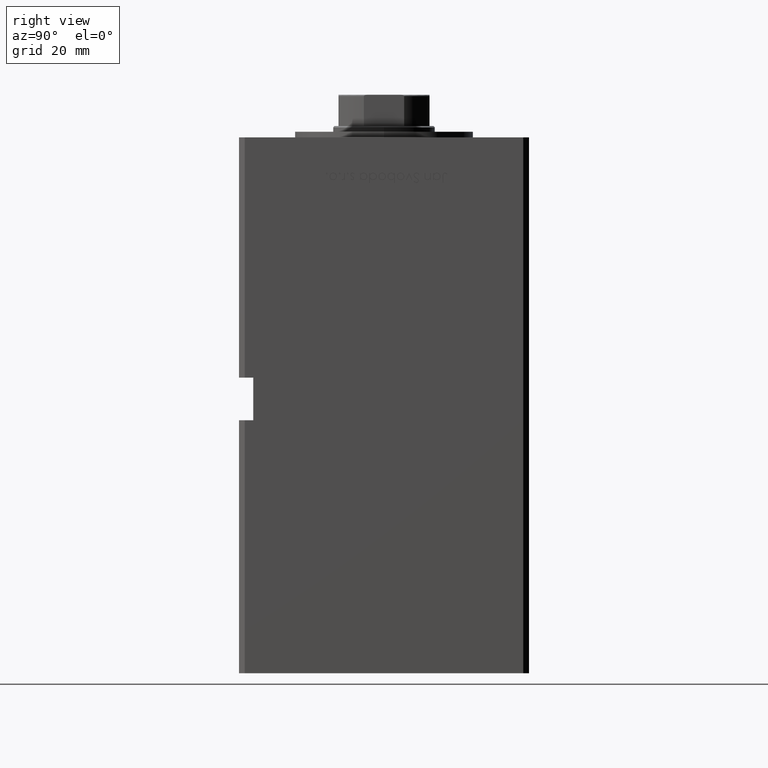
[diagram: clean part render]
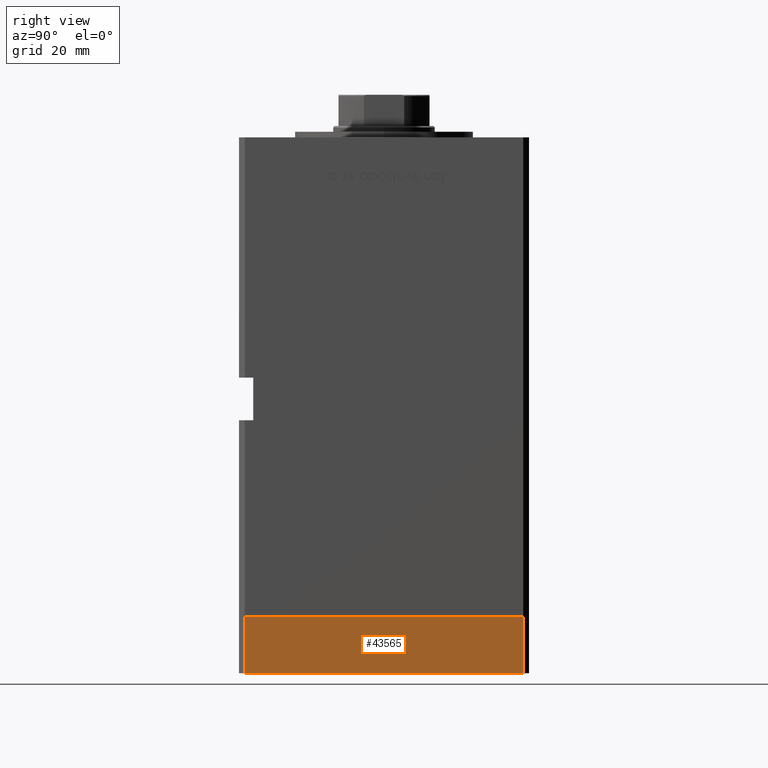
[diagram: same view with one face highlighted and labeled with its STEP entity id]
A machine part, right view. The second image highlights one B-rep face of the part: STEP entity #43565.
In plain terms, the highlighted planar face has unit normal (1, 0, 0).
Its self-contained STEP definition (entity closure, byte-faithful):
#369 = PLANE ( 'NONE',  #8698 ) ;
#2108 = VERTEX_POINT ( 'NONE', #8859 ) ;
#2494 = CARTESIAN_POINT ( 'NONE',  ( -60.00000000000000000, 48.99999999999995737, -20.00000000000000000 ) ) ;
#2726 = CARTESIAN_POINT ( 'NONE',  ( -60.00000000000000000, 48.99999999999995737, 0.000000000000000000 ) ) ;
#2756 = LINE ( 'NONE', #2494, #39090 ) ;
#4113 = DIRECTION ( 'NONE',  ( 0.000000000000000000, -1.000000000000000000, 0.000000000000000000 ) ) ;
#4529 = VERTEX_POINT ( 'NONE', #23020 ) ;
#5298 = ORIENTED_EDGE ( 'NONE', *, *, #5501, .T. ) ;
#5501 = EDGE_CURVE ( 'NONE', #4529, #42513, #32628, .T. ) ;
#8140 = CARTESIAN_POINT ( 'NONE',  ( -60.00000000000000000, 48.99999999999995737, -20.00000000000000000 ) ) ;
#8698 = AXIS2_PLACEMENT_3D ( 'NONE', #8140, #23971, #24498 ) ;
#8859 = CARTESIAN_POINT ( 'NONE',  ( -60.00000000000000000, 48.99999999999995737, 0.000000000000000000 ) ) ;
#9202 = VERTEX_POINT ( 'NONE', #29953 ) ;
#9539 = EDGE_LOOP ( 'NONE', ( #43879, #9686, #47353, #5298 ) ) ;
#9686 = ORIENTED_EDGE ( 'NONE', *, *, #21987, .F. ) ;
#16621 = VECTOR ( 'NONE', #4113, 1000.000000000000000 ) ;
#16825 = CARTESIAN_POINT ( 'NONE',  ( -60.00000000000000000, -49.00000000000000000, -20.00000000000000000 ) ) ;
#17722 = EDGE_CURVE ( 'NONE', #9202, #4529, #44878, .T. ) ;
#20435 = CARTESIAN_POINT ( 'NONE',  ( -60.00000000000000000, -49.00000000000000000, 0.000000000000000000 ) ) ;
#21987 = EDGE_CURVE ( 'NONE', #9202, #2108, #2756, .T. ) ;
#23020 = CARTESIAN_POINT ( 'NONE',  ( -60.00000000000000000, -49.00000000000000000, -20.00000000000000000 ) ) ;
#23971 = DIRECTION ( 'NONE',  ( -1.000000000000000000, 0.000000000000000000, 0.000000000000000000 ) ) ;
#24498 = DIRECTION ( 'NONE',  ( 0.000000000000000000, 0.000000000000000000, 1.000000000000000000 ) ) ;
#26659 = DIRECTION ( 'NONE',  ( 0.000000000000000000, 0.000000000000000000, 1.000000000000000000 ) ) ;
#29953 = CARTESIAN_POINT ( 'NONE',  ( -60.00000000000000000, 48.99999999999995737, -20.00000000000000000 ) ) ;
#31498 = EDGE_CURVE ( 'NONE', #2108, #42513, #42969, .T. ) ;
#31595 = VECTOR ( 'NONE', #51796, 1000.000000000000000 ) ;
#32628 = LINE ( 'NONE', #16825, #46331 ) ;
#39090 = VECTOR ( 'NONE', #26659, 1000.000000000000000 ) ;
#42513 = VERTEX_POINT ( 'NONE', #20435 ) ;
#42969 = LINE ( 'NONE', #2726, #31595 ) ;
#43565 = ADVANCED_FACE ( 'NONE', ( #52376 ), #369, .T. ) ;
#43879 = ORIENTED_EDGE ( 'NONE', *, *, #31498, .F. ) ;
#44878 = LINE ( 'NONE', #52646, #16621 ) ;
#46331 = VECTOR ( 'NONE', #48720, 1000.000000000000000 ) ;
#47353 = ORIENTED_EDGE ( 'NONE', *, *, #17722, .T. ) ;
#48720 = DIRECTION ( 'NONE',  ( 0.000000000000000000, 0.000000000000000000, 1.000000000000000000 ) ) ;
#51796 = DIRECTION ( 'NONE',  ( 0.000000000000000000, -1.000000000000000000, 0.000000000000000000 ) ) ;
#52376 = FACE_OUTER_BOUND ( 'NONE', #9539, .T. ) ;
#52646 = CARTESIAN_POINT ( 'NONE',  ( -60.00000000000000000, 48.99999999999995737, -20.00000000000000000 ) ) ;